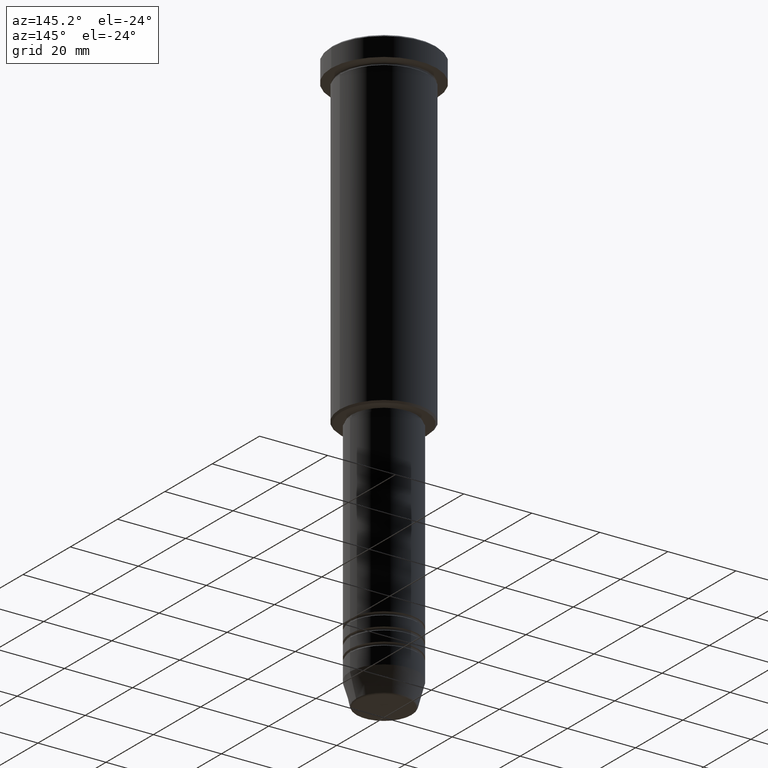
[diagram: clean part render]
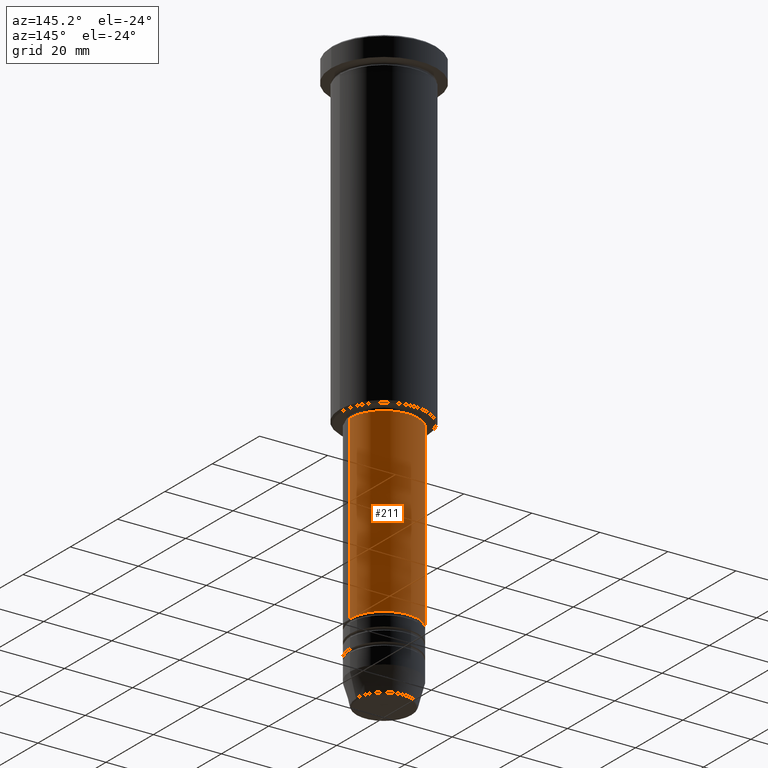
[diagram: same view with one face highlighted and labeled with its STEP entity id]
A machine part, auxiliary view. The second image highlights one B-rep face of the part: STEP entity #211.
In plain terms, the highlighted cylindrical surface (partial cylindrical patch) has radius 10 mm, axis along (-0, -0, 1).
Its self-contained STEP definition (entity closure, byte-faithful):
#42 = DIRECTION ( 'NONE',  ( -0.000000000000000000, -0.000000000000000000, 1.000000000000000000 ) ) ;
#53 = DIRECTION ( 'NONE',  ( -0.000000000000000000, -0.000000000000000000, 1.000000000000000000 ) ) ;
#54 = CIRCLE ( 'NONE', #76, 10.00000000000000178 ) ;
#76 = AXIS2_PLACEMENT_3D ( 'NONE', #761, #1046, #681 ) ;
#84 = DIRECTION ( 'NONE',  ( -0.000000000000000000, -0.000000000000000000, 1.000000000000000000 ) ) ;
#96 = CARTESIAN_POINT ( 'NONE',  ( -9.999999999999998224, 1.224646799147353256E-15, -96.99999999999997158 ) ) ;
#149 = ORIENTED_EDGE ( 'NONE', *, *, #551, .T. ) ;
#206 = ORIENTED_EDGE ( 'NONE', *, *, #646, .F. ) ;
#211 = ADVANCED_FACE ( 'NONE', ( #337 ), #889, .T. ) ;
#226 = DIRECTION ( 'NONE',  ( 1.000000000000000000, 0.000000000000000000, 0.000000000000000000 ) ) ;
#232 = EDGE_LOOP ( 'NONE', ( #149, #309, #206, #728 ) ) ;
#272 = CARTESIAN_POINT ( 'NONE',  ( -10.00000000000000000, 1.224646799147353256E-15, 0.000000000000000000 ) ) ;
#298 = CARTESIAN_POINT ( 'NONE',  ( 10.00000000000000178, 0.000000000000000000, -149.9999999999998579 ) ) ;
#304 = CIRCLE ( 'NONE', #1120, 9.999999999999998224 ) ;
#309 = ORIENTED_EDGE ( 'NONE', *, *, #686, .T. ) ;
#318 = LINE ( 'NONE', #272, #908 ) ;
#337 = FACE_OUTER_BOUND ( 'NONE', #232, .T. ) ;
#387 = VECTOR ( 'NONE', #84, 1000.000000000000000 ) ;
#521 = CARTESIAN_POINT ( 'NONE',  ( 0.000000000000000000, 0.000000000000000000, 0.000000000000000000 ) ) ;
#551 = EDGE_CURVE ( 'NONE', #944, #955, #54, .T. ) ;
#559 = CARTESIAN_POINT ( 'NONE',  ( -10.00000000000000178, 1.224646799147353454E-15, -149.9999999999998579 ) ) ;
#646 = EDGE_CURVE ( 'NONE', #893, #964, #304, .T. ) ;
#681 = DIRECTION ( 'NONE',  ( 1.000000000000000000, 0.000000000000000000, 0.000000000000000000 ) ) ;
#686 = EDGE_CURVE ( 'NONE', #955, #964, #318, .T. ) ;
#709 = LINE ( 'NONE', #913, #387 ) ;
#728 = ORIENTED_EDGE ( 'NONE', *, *, #837, .F. ) ;
#761 = CARTESIAN_POINT ( 'NONE',  ( 0.000000000000000000, 0.000000000000000000, -149.9999999999998579 ) ) ;
#837 = EDGE_CURVE ( 'NONE', #944, #893, #709, .T. ) ;
#889 = CYLINDRICAL_SURFACE ( 'NONE', #1164, 10.00000000000000000 ) ;
#893 = VERTEX_POINT ( 'NONE', #1026 ) ;
#900 = DIRECTION ( 'NONE',  ( -0.000000000000000000, -0.000000000000000000, 1.000000000000000000 ) ) ;
#908 = VECTOR ( 'NONE', #900, 1000.000000000000000 ) ;
#913 = CARTESIAN_POINT ( 'NONE',  ( 10.00000000000000000, 0.000000000000000000, 0.000000000000000000 ) ) ;
#944 = VERTEX_POINT ( 'NONE', #298 ) ;
#955 = VERTEX_POINT ( 'NONE', #559 ) ;
#964 = VERTEX_POINT ( 'NONE', #96 ) ;
#1026 = CARTESIAN_POINT ( 'NONE',  ( 9.999999999999998224, 0.000000000000000000, -96.99999999999997158 ) ) ;
#1046 = DIRECTION ( 'NONE',  ( -0.000000000000000000, -0.000000000000000000, 1.000000000000000000 ) ) ;
#1120 = AXIS2_PLACEMENT_3D ( 'NONE', #1127, #42, #226 ) ;
#1127 = CARTESIAN_POINT ( 'NONE',  ( 0.000000000000000000, 0.000000000000000000, -96.99999999999997158 ) ) ;
#1139 = DIRECTION ( 'NONE',  ( 1.000000000000000000, 0.000000000000000000, 0.000000000000000000 ) ) ;
#1164 = AXIS2_PLACEMENT_3D ( 'NONE', #521, #53, #1139 ) ;